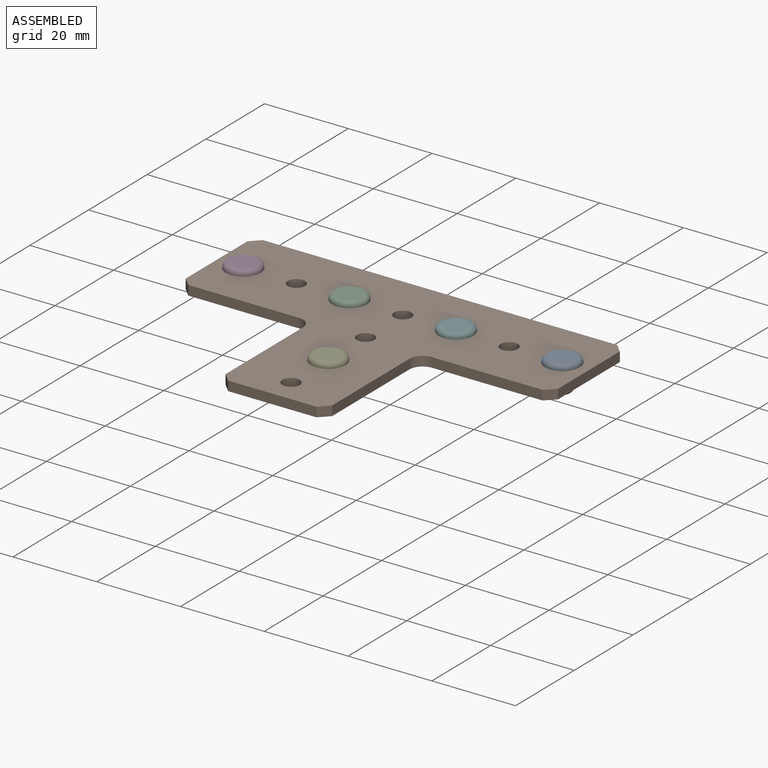
[diagram: assembled view]
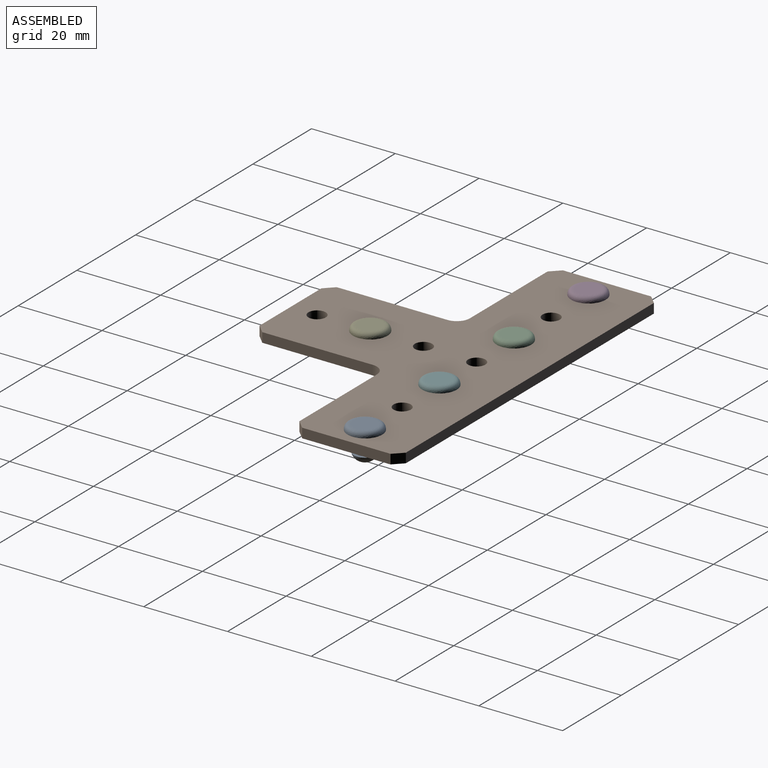
[diagram: assembled view, second angle]
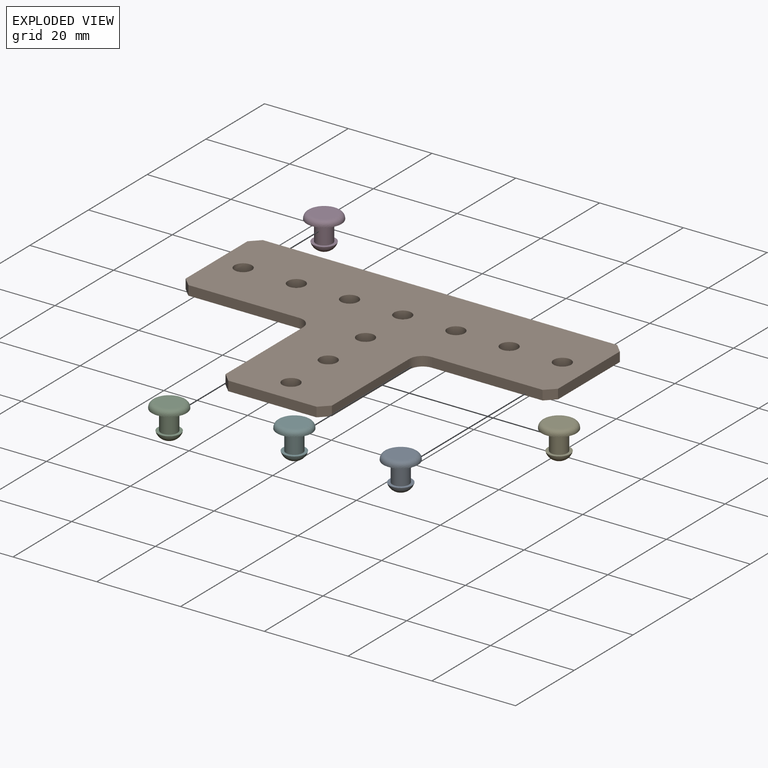
[diagram: exploded view]
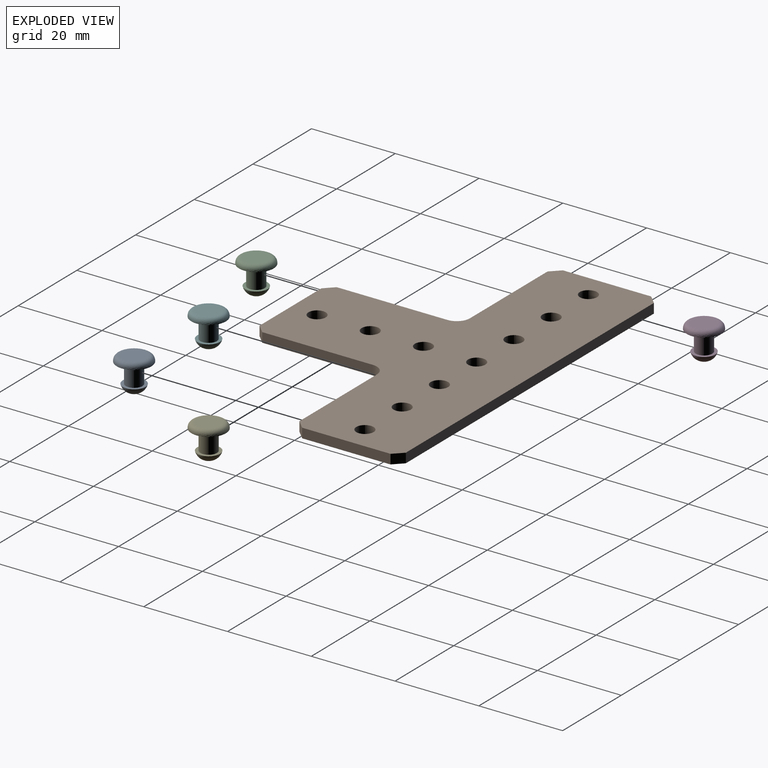
[diagram: exploded view, second angle]
ASSEMBLY  parts=6 mates=5
PART A: 7 faces, bbox 9.2x9.2x8 mm
  f0: plane 5.72x5.72mm, normal (0,0,1), area 25.6mm2, adj f5
  f1: plane 8.27x8.26mm, normal (0,0,-1), area 41.2mm2, adj f2,f5
  f2: cylinder r=1.98mm len=4.83mm, axis (0,0,1), area 60.2mm2, adj f1,f4
  f3: plane 0.48x0.48mm, normal (0,0,-1), area 0.2mm2, adj f6
  f4: plane 5.4x5.4mm, normal (0,0,1), area 10.5mm2, adj f2,f6
  f5: bspline ~9.15x9.15mm, area 47.9mm2, adj f0,f1
  f6: torus R=0.24mm, axis (0,0,1), area 35.4mm2, adj f3,f4
PART B: 28 faces, bbox 88.9x57.2x2.3 mm
  f0: cylinder r=2.07mm len=4.14mm, axis (0,0,-1), area 29.7mm2, adj f10,f11
  f1: cylinder r=2.07mm len=4.14mm, axis (0,0,-1), area 29.7mm2, adj f10,f11
  f2: cylinder r=2.07mm len=4.14mm, axis (0,0,-1), area 29.7mm2, adj f10,f11
  f3: cylinder r=2.07mm len=4.14mm, axis (0,0,-1), area 29.7mm2, adj f10,f11
  f4: cylinder r=2.07mm len=4.14mm, axis (0,0,-1), area 29.7mm2, adj f10,f11
  f5: cylinder r=2.07mm len=4.14mm, axis (0,0,-1), area 29.7mm2, adj f10,f11
  f6: cylinder r=2.07mm len=4.14mm, axis (0,0,-1), area 29.7mm2, adj f10,f11
  f7: cylinder r=2.07mm len=4.14mm, axis (0,0,-1), area 29.7mm2, adj f10,f11
  f8: cylinder r=2.07mm len=4.14mm, axis (0,0,-1), area 29.7mm2, adj f10,f11
  f9: cylinder r=2.07mm len=4.14mm, axis (0,0,-1), area 29.7mm2, adj f10,f11
  f10: plane 88.9x57.15mm, normal (0,0,1), area 2920.2mm2, adj f0,f1,f2,f3,f4,f5,f6,f7
  f11: plane 88.9x57.15mm, normal (0,0,-1), area 2920.2mm2, adj f0,f1,f2,f3,f4,f5,f6,f7
  f12: plane 26.42x2.29mm, normal (0,-1,0), area 60.4mm2, adj f10,f11,f20,f26
  f13: plane 21.08x2.29mm, normal (1,0,0), area 48.2mm2, adj f10,f11,f20,f21
  f14: plane 84.58x2.29mm, normal (0,1,0), area 193.4mm2, adj f10,f11,f21,f22
  f15: plane 21.08x2.29mm, normal (-1,0,0), area 48.2mm2, adj f10,f11,f22,f23
  f16: plane 26.42x2.29mm, normal (0,-1,0), area 60.4mm2, adj f10,f11,f23,f27
  f17: plane 26.42x2.29mm, normal (-1,0,0), area 60.4mm2, adj f10,f11,f24,f27
  f18: plane 21.08x2.29mm, normal (0,-1,0), area 48.2mm2, adj f10,f11,f24,f25
  f19: plane 26.42x2.29mm, normal (1,0,0), area 60.4mm2, adj f10,f11,f25,f26
  f20: plane 2.29x2.16mm, normal (0.71,-0.71,0), area 7mm2, adj f10,f11,f12,f13
  f21: plane 2.29x2.16mm, normal (0.71,0.71,0), area 7mm2, adj f10,f11,f13,f14
  f22: plane 2.29x2.16mm, normal (-0.71,0.71,0), area 7mm2, adj f10,f11,f14,f15
  f23: plane 2.29x2.16mm, normal (-0.71,-0.71,0), area 7mm2, adj f10,f11,f15,f16
  f24: plane 2.29x2.16mm, normal (-0.71,-0.71,0), area 7mm2, adj f10,f11,f17,f18
  f25: plane 2.29x2.16mm, normal (0.71,-0.71,0), area 7mm2, adj f10,f11,f18,f19
  f26: cylinder r=3.17mm len=3.18mm, axis (0,0,1), area 11.4mm2, adj f10,f11,f12,f19
  f27: cylinder r=3.17mm len=3.18mm, axis (0,0,1), area 11.4mm2, adj f10,f11,f16,f17
PART C: same geometry as A
PART D: same geometry as A
PART E: same geometry as A
PART F: same geometry as A
PLACE A t=(55.69,27.78,3.77)mm
PLACE B t=(17.59,15.08,1.48)mm
PLACE C t=(4.89,27.78,3.77)mm
PLACE D t=(-20.51,27.78,3.77)mm
PLACE E t=(17.59,2.38,3.77)mm
PLACE F t=(30.29,27.78,3.77)mm
MATE fastened B.f6 <-> C.f2  axis (0,0,1) through (4.89,27.78,3.77)mm
MATE fastened B.f4 <-> F.f2  axis (0,0,1) through (30.29,27.78,3.77)mm
MATE fastened B.f2 <-> A.f2  axis (0,0,1) through (55.69,27.78,3.77)mm
MATE fastened B.f9 <-> D.f2  axis (0,0,1) through (-20.51,27.78,3.77)mm
MATE fastened B.f0 <-> E.f2  axis (0,0,1) through (17.59,2.38,3.77)mm
